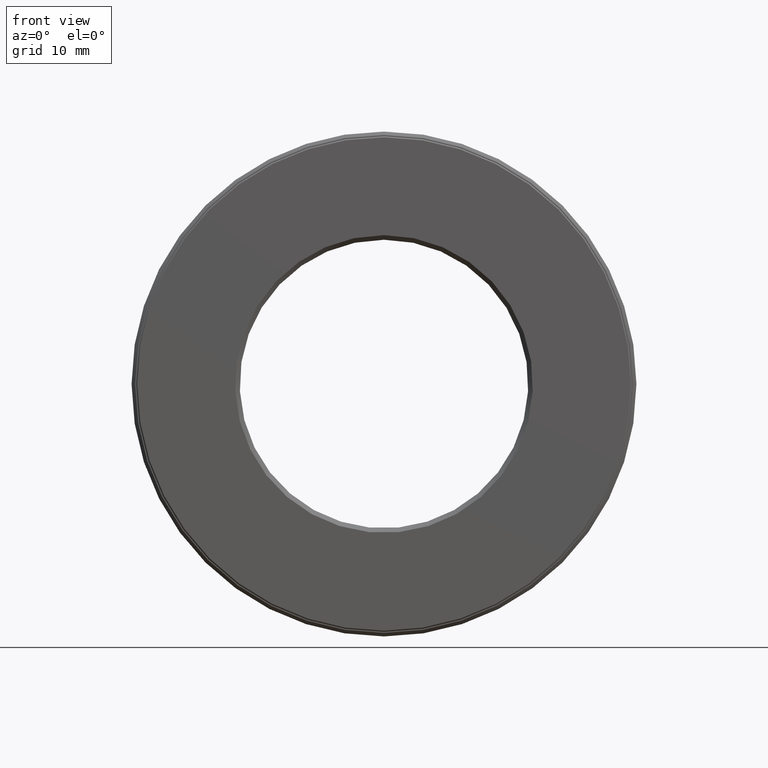
[diagram: clean part render]
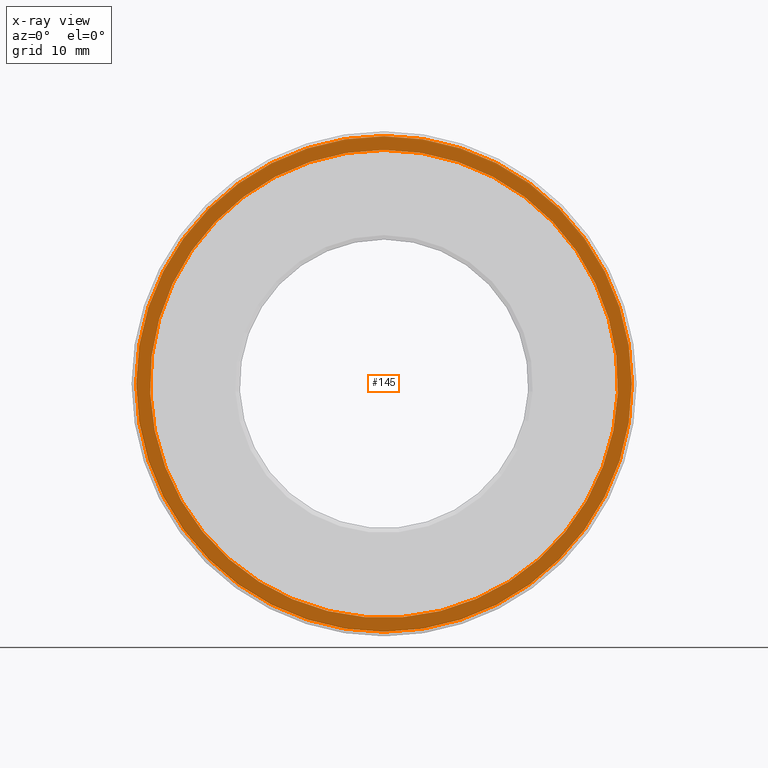
[diagram: x-ray — body ghosted, one internal face saturated and labeled with its STEP entity id]
A machine part, front view, then the same camera in x-ray: the body is ghosted and one INTERNAL B-rep face — a face not visible from any outside direction — is saturated and labeled: STEP entity #145.
In plain terms, the highlighted planar face has unit normal (-0, 1, 0).
Its self-contained STEP definition (entity closure, byte-faithful):
#21 = DIRECTION ( 'NONE',  ( -0.0000000000000000000, 1.000000000000000000, 0.0000000000000000000 ) ) ;
#41 = CARTESIAN_POINT ( 'NONE',  ( 0.0000000000000000000, 0.6524999999999997500, 0.0000000000000000000 ) ) ;
#47 = EDGE_LOOP ( 'NONE', ( #94 ) ) ;
#88 = CARTESIAN_POINT ( 'NONE',  ( 0.0000000000000000000, 0.6524999999999997500, 0.0000000000000000000 ) ) ;
#92 = DIRECTION ( 'NONE',  ( -0.0000000000000000000, 1.000000000000000000, -0.0000000000000000000 ) ) ;
#94 = ORIENTED_EDGE ( 'NONE', *, *, #297, .T. ) ;
#108 = CIRCLE ( 'NONE', #386, 1.013750000000000200 ) ;
#126 = DIRECTION ( 'NONE',  ( 0.0000000000000000000, 0.0000000000000000000, 1.000000000000000000 ) ) ;
#145 = ADVANCED_FACE ( 'NONE', ( #147, #247 ), #402, .F. ) ;
#147 = FACE_OUTER_BOUND ( 'NONE', #261, .T. ) ;
#154 = AXIS2_PLACEMENT_3D ( 'NONE', #41, #314, #356 ) ;
#194 = CIRCLE ( 'NONE', #154, 1.073750000000000000 ) ;
#217 = VERTEX_POINT ( 'NONE', #232 ) ;
#232 = CARTESIAN_POINT ( 'NONE',  ( 0.0000000000000000000, 0.6524999999999997500, 1.013750000000000200 ) ) ;
#247 = FACE_BOUND ( 'NONE', #47, .T. ) ;
#261 = EDGE_LOOP ( 'NONE', ( #271 ) ) ;
#271 = ORIENTED_EDGE ( 'NONE', *, *, #528, .F. ) ;
#297 = EDGE_CURVE ( 'NONE', #217, #217, #108, .T. ) ;
#298 = CARTESIAN_POINT ( 'NONE',  ( 0.0000000000000000000, 0.6524999999999997500, 1.073750000000000000 ) ) ;
#307 = CARTESIAN_POINT ( 'NONE',  ( 0.0000000000000000000, 0.6524999999999997500, 0.0000000000000000000 ) ) ;
#314 = DIRECTION ( 'NONE',  ( -0.0000000000000000000, 1.000000000000000000, -0.0000000000000000000 ) ) ;
#356 = DIRECTION ( 'NONE',  ( 0.0000000000000000000, 0.0000000000000000000, 1.000000000000000000 ) ) ;
#386 = AXIS2_PLACEMENT_3D ( 'NONE', #88, #92, #126 ) ;
#402 = PLANE ( 'NONE',  #444 ) ;
#406 = VERTEX_POINT ( 'NONE', #298 ) ;
#444 = AXIS2_PLACEMENT_3D ( 'NONE', #307, #21, #491 ) ;
#491 = DIRECTION ( 'NONE',  ( 0.0000000000000000000, 0.0000000000000000000, 1.000000000000000000 ) ) ;
#528 = EDGE_CURVE ( 'NONE', #406, #406, #194, .T. ) ;